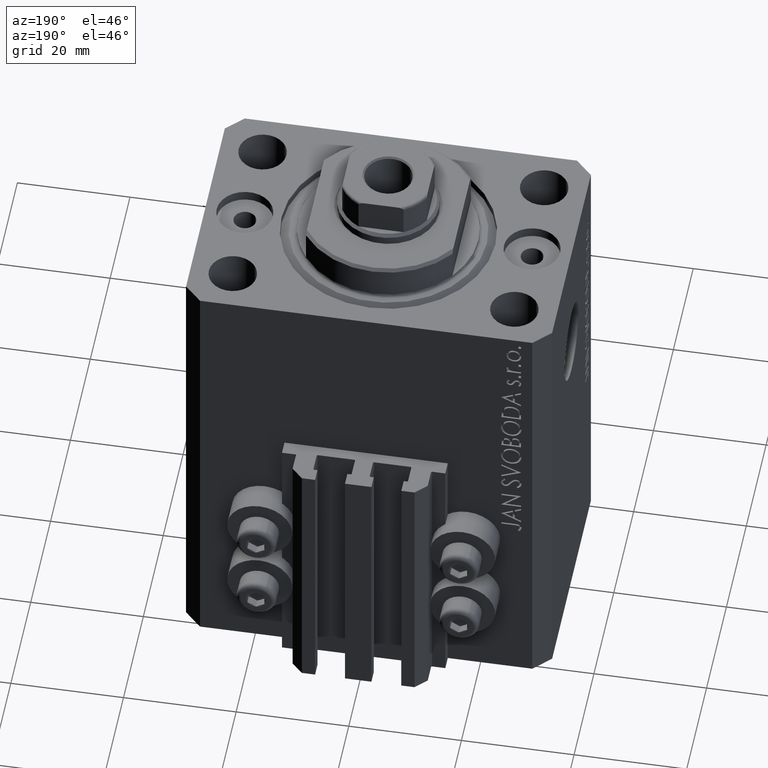
[diagram: clean part render]
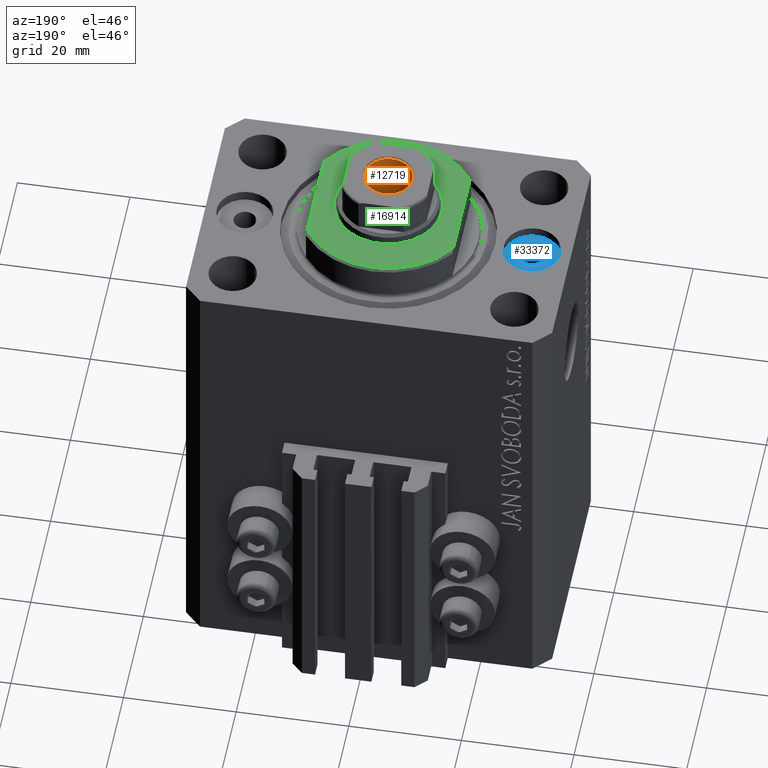
[diagram: same view with three faces highlighted in distinct colors, each labeled with its STEP entity id]
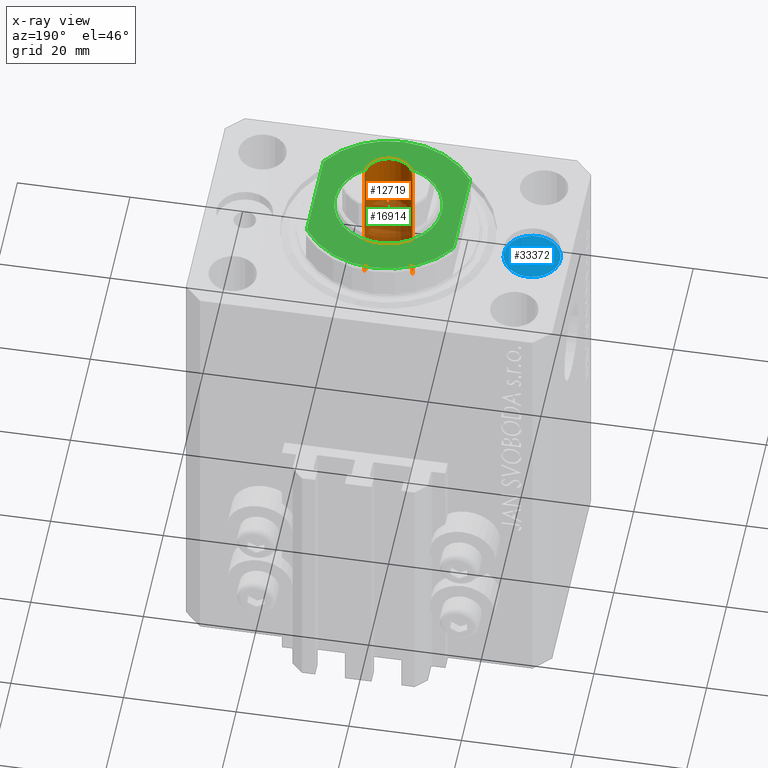
[diagram: x-ray of the same camera — body ghosted, the three highlighted faces saturated]
A machine part, auxiliary view with three faces highlighted in distinct colors.
The next image is the same camera in x-ray (body ghosted, the three faces saturated) — at least one of them is partly hidden behind the body in this view.
Their STEP definitions:

[orange] entity #12719 — the highlighted cylindrical surface (edge-blend (fillet) strip) has radius 4.25 mm, axis along (0, 0, 1).
#29 = EDGE_CURVE ( 'NONE', #27291, #1811, #26779, .T. ) ;
#200 = CARTESIAN_POINT ( 'NONE',  ( 4.249999999999996447, 0.000000000000000000, 88.79999999999999716 ) ) ;
#1714 = ORIENTED_EDGE ( 'NONE', *, *, #38770, .T. ) ;
#1811 = VERTEX_POINT ( 'NONE', #41011 ) ;
#2341 = ORIENTED_EDGE ( 'NONE', *, *, #9839, .F. ) ;
#2531 = CARTESIAN_POINT ( 'NONE',  ( 4.249999999999994671, 0.000000000000000000, 64.10000000000002274 ) ) ;
#3401 = AXIS2_PLACEMENT_3D ( 'NONE', #7083, #18296, #28316 ) ;
#5079 = AXIS2_PLACEMENT_3D ( 'NONE', #25809, #22003, #46596 ) ;
#5413 = VECTOR ( 'NONE', #23459, 1000.000000000000000 ) ;
#5696 = CIRCLE ( 'NONE', #45306, 4.249999999999996447 ) ;
#5751 = CARTESIAN_POINT ( 'NONE',  ( -4.249999999999994671, 5.204748896376244783E-16, 64.10000000000002274 ) ) ;
#7083 = CARTESIAN_POINT ( 'NONE',  ( 0.000000000000000000, 0.000000000000000000, 89.10000000000000853 ) ) ;
#7947 = EDGE_LOOP ( 'NONE', ( #31603, #18850, #1714, #2341 ) ) ;
#7962 = VECTOR ( 'NONE', #19331, 1000.000000000000000 ) ;
#9839 = EDGE_CURVE ( 'NONE', #10547, #12390, #37940, .T. ) ;
#10187 = CYLINDRICAL_SURFACE ( 'NONE', #3401, 4.249999999999996447 ) ;
#10466 = CARTESIAN_POINT ( 'NONE',  ( 0.000000000000000000, 0.000000000000000000, 88.79999999999999716 ) ) ;
#10547 = VERTEX_POINT ( 'NONE', #2531 ) ;
#12390 = VERTEX_POINT ( 'NONE', #200 ) ;
#12719 = ADVANCED_FACE ( 'NONE', ( #13778 ), #10187, .F. ) ;
#13778 = FACE_OUTER_BOUND ( 'NONE', #7947, .T. ) ;
#17607 = EDGE_CURVE ( 'NONE', #27291, #10547, #30945, .T. ) ;
#18296 = DIRECTION ( 'NONE',  ( -0.000000000000000000, -0.000000000000000000, 1.000000000000000000 ) ) ;
#18850 = ORIENTED_EDGE ( 'NONE', *, *, #29, .T. ) ;
#19331 = DIRECTION ( 'NONE',  ( -0.000000000000000000, -0.000000000000000000, 1.000000000000000000 ) ) ;
#22003 = DIRECTION ( 'NONE',  ( -0.000000000000000000, -0.000000000000000000, 1.000000000000000000 ) ) ;
#22744 = CARTESIAN_POINT ( 'NONE',  ( -4.249999999999996447, 5.204748896376247741E-16, 89.10000000000000853 ) ) ;
#23459 = DIRECTION ( 'NONE',  ( -0.000000000000000000, -0.000000000000000000, 1.000000000000000000 ) ) ;
#25809 = CARTESIAN_POINT ( 'NONE',  ( 0.000000000000000000, 0.000000000000000000, 64.10000000000002274 ) ) ;
#26779 = LINE ( 'NONE', #22744, #5413 ) ;
#27291 = VERTEX_POINT ( 'NONE', #5751 ) ;
#28316 = DIRECTION ( 'NONE',  ( 1.000000000000000000, 0.000000000000000000, 0.000000000000000000 ) ) ;
#30945 = CIRCLE ( 'NONE', #5079, 4.249999999999994671 ) ;
#31603 = ORIENTED_EDGE ( 'NONE', *, *, #17607, .F. ) ;
#35501 = DIRECTION ( 'NONE',  ( 0.000000000000000000, 0.000000000000000000, 1.000000000000000000 ) ) ;
#37446 = CARTESIAN_POINT ( 'NONE',  ( 4.249999999999996447, 0.000000000000000000, 89.10000000000000853 ) ) ;
#37940 = LINE ( 'NONE', #37446, #7962 ) ;
#38770 = EDGE_CURVE ( 'NONE', #1811, #12390, #5696, .T. ) ;
#39075 = DIRECTION ( 'NONE',  ( 1.000000000000000000, 0.000000000000000000, 0.000000000000000000 ) ) ;
#41011 = CARTESIAN_POINT ( 'NONE',  ( -4.249999999999996447, 5.204748896376247741E-16, 88.79999999999999716 ) ) ;
#45306 = AXIS2_PLACEMENT_3D ( 'NONE', #10466, #35501, #39075 ) ;
#46596 = DIRECTION ( 'NONE',  ( 1.000000000000000000, 0.000000000000000000, 0.000000000000000000 ) ) ;

[blue] entity #33372 — the highlighted planar face has unit normal (0, 0, 1).
#475 = CIRCLE ( 'NONE', #45416, 5.000000000003342215 ) ;
#1683 = CARTESIAN_POINT ( 'NONE',  ( -25.50000000000000000, 0.000000000000000000, -1.899999999999999911 ) ) ;
#4782 = AXIS2_PLACEMENT_3D ( 'NONE', #35223, #42146, #13051 ) ;
#5661 = PLANE ( 'NONE',  #4782 ) ;
#13051 = DIRECTION ( 'NONE',  ( 1.000000000000000000, 0.000000000000000000, -0.000000000000000000 ) ) ;
#13998 = EDGE_LOOP ( 'NONE', ( #45008, #27312 ) ) ;
#14011 = CARTESIAN_POINT ( 'NONE',  ( -25.50000000000000000, 0.000000000000000000, -1.899999999999999911 ) ) ;
#14438 = ORIENTED_EDGE ( 'NONE', *, *, #42586, .T. ) ;
#15514 = DIRECTION ( 'NONE',  ( 0.000000000000000000, 0.000000000000000000, 1.000000000000000000 ) ) ;
#16234 = CIRCLE ( 'NONE', #20044, 5.000000000003342215 ) ;
#16245 = DIRECTION ( 'NONE',  ( 1.000000000000000000, 0.000000000000000000, 0.000000000000000000 ) ) ;
#18574 = CIRCLE ( 'NONE', #23132, 2.000000000003339551 ) ;
#19815 = CARTESIAN_POINT ( 'NONE',  ( -30.50000000000333955, 6.123233995740857512E-16, -1.899999999999999911 ) ) ;
#20044 = AXIS2_PLACEMENT_3D ( 'NONE', #14011, #43107, #39287 ) ;
#20690 = FACE_BOUND ( 'NONE', #13998, .T. ) ;
#23022 = CARTESIAN_POINT ( 'NONE',  ( -25.50000000000000000, 0.000000000000000000, -1.899999999999999911 ) ) ;
#23132 = AXIS2_PLACEMENT_3D ( 'NONE', #23022, #27530, #41634 ) ;
#25170 = CARTESIAN_POINT ( 'NONE',  ( -27.50000000000333600, 2.449293598298799123E-16, -1.899999999999999911 ) ) ;
#25997 = VERTEX_POINT ( 'NONE', #25170 ) ;
#26469 = VERTEX_POINT ( 'NONE', #45835 ) ;
#27312 = ORIENTED_EDGE ( 'NONE', *, *, #36437, .F. ) ;
#27530 = DIRECTION ( 'NONE',  ( 0.000000000000000000, 0.000000000000000000, 1.000000000000000000 ) ) ;
#29542 = CARTESIAN_POINT ( 'NONE',  ( -20.49999999999665690, 0.000000000000000000, -1.899999999999999911 ) ) ;
#30582 = VERTEX_POINT ( 'NONE', #19815 ) ;
#32114 = FACE_OUTER_BOUND ( 'NONE', #40085, .T. ) ;
#32934 = EDGE_CURVE ( 'NONE', #26469, #25997, #35212, .T. ) ;
#33372 = ADVANCED_FACE ( 'NONE', ( #20690, #32114 ), #5661, .T. ) ;
#33649 = DIRECTION ( 'NONE',  ( 0.000000000000000000, 0.000000000000000000, 1.000000000000000000 ) ) ;
#34351 = EDGE_CURVE ( 'NONE', #30582, #44676, #16234, .T. ) ;
#35212 = CIRCLE ( 'NONE', #40566, 2.000000000003339551 ) ;
#35223 = CARTESIAN_POINT ( 'NONE',  ( -25.50000000000000000, 0.000000000000000000, -1.899999999999999911 ) ) ;
#36437 = EDGE_CURVE ( 'NONE', #25997, #26469, #18574, .T. ) ;
#39287 = DIRECTION ( 'NONE',  ( 1.000000000000000000, 0.000000000000000000, 0.000000000000000000 ) ) ;
#40085 = EDGE_LOOP ( 'NONE', ( #14438, #41512 ) ) ;
#40566 = AXIS2_PLACEMENT_3D ( 'NONE', #44864, #15514, #41511 ) ;
#41511 = DIRECTION ( 'NONE',  ( 1.000000000000000000, 0.000000000000000000, 0.000000000000000000 ) ) ;
#41512 = ORIENTED_EDGE ( 'NONE', *, *, #34351, .T. ) ;
#41634 = DIRECTION ( 'NONE',  ( 1.000000000000000000, 0.000000000000000000, 0.000000000000000000 ) ) ;
#42146 = DIRECTION ( 'NONE',  ( 0.000000000000000000, 0.000000000000000000, 1.000000000000000000 ) ) ;
#42586 = EDGE_CURVE ( 'NONE', #44676, #30582, #475, .T. ) ;
#43107 = DIRECTION ( 'NONE',  ( 0.000000000000000000, 0.000000000000000000, 1.000000000000000000 ) ) ;
#44676 = VERTEX_POINT ( 'NONE', #29542 ) ;
#44864 = CARTESIAN_POINT ( 'NONE',  ( -25.50000000000000000, 0.000000000000000000, -1.899999999999999911 ) ) ;
#45008 = ORIENTED_EDGE ( 'NONE', *, *, #32934, .F. ) ;
#45416 = AXIS2_PLACEMENT_3D ( 'NONE', #1683, #33649, #16245 ) ;
#45835 = CARTESIAN_POINT ( 'NONE',  ( -23.49999999999666045, 0.000000000000000000, -1.899999999999999911 ) ) ;

[green] entity #16914 — the highlighted planar face has unit normal (0, 0, 1).
#1033 = EDGE_CURVE ( 'NONE', #44211, #14577, #35914, .T. ) ;
#1506 = CARTESIAN_POINT ( 'NONE',  ( -9.500000000000015987, 0.000000000000000000, -6.500000000000000000 ) ) ;
#1670 = DIRECTION ( 'NONE',  ( -1.000000000000000000, 0.000000000000000000, 0.000000000000000000 ) ) ;
#3976 = DIRECTION ( 'NONE',  ( 0.000000000000000000, 0.000000000000000000, -1.000000000000000000 ) ) ;
#4541 = DIRECTION ( 'NONE',  ( -0.000000000000000000, -0.000000000000000000, 1.000000000000000000 ) ) ;
#5203 = ORIENTED_EDGE ( 'NONE', *, *, #7954, .T. ) ;
#5254 = CARTESIAN_POINT ( 'NONE',  ( -13.00000000000000000, -43.08131845707602992, -6.500000000000000000 ) ) ;
#5558 = EDGE_CURVE ( 'NONE', #18312, #29109, #27678, .T. ) ;
#7561 = FACE_BOUND ( 'NONE', #21980, .T. ) ;
#7954 = EDGE_CURVE ( 'NONE', #25832, #47138, #20104, .T. ) ;
#8691 = CARTESIAN_POINT ( 'NONE',  ( 0.000000000000000000, 0.000000000000000000, -6.500000000000000000 ) ) ;
#8759 = EDGE_CURVE ( 'NONE', #25832, #29109, #37928, .T. ) ;
#9792 = EDGE_CURVE ( 'NONE', #14577, #44211, #28529, .T. ) ;
#11132 = CARTESIAN_POINT ( 'NONE',  ( 13.00000000000000000, 8.440971508067139695, -6.500000000000000000 ) ) ;
#12635 = CARTESIAN_POINT ( 'NONE',  ( -13.00000000000000000, -8.440971508067139695, -6.500000000000000000 ) ) ;
#12660 = CARTESIAN_POINT ( 'NONE',  ( 0.000000000000000000, 0.000000000000000000, -6.500000000000000000 ) ) ;
#13497 = CARTESIAN_POINT ( 'NONE',  ( 0.000000000000000000, 0.000000000000000000, -6.500000000000000000 ) ) ;
#14577 = VERTEX_POINT ( 'NONE', #1506 ) ;
#16914 = ADVANCED_FACE ( 'NONE', ( #7561, #47177 ), #22107, .T. ) ;
#17442 = CARTESIAN_POINT ( 'NONE',  ( -13.00000000000000000, 8.440971508067139695, -6.500000000000000000 ) ) ;
#18036 = LINE ( 'NONE', #47131, #46435 ) ;
#18144 = EDGE_CURVE ( 'NONE', #47138, #18312, #18036, .T. ) ;
#18312 = VERTEX_POINT ( 'NONE', #37535 ) ;
#18538 = DIRECTION ( 'NONE',  ( -1.000000000000000000, 0.000000000000000000, -0.000000000000000000 ) ) ;
#18659 = DIRECTION ( 'NONE',  ( -1.000000000000000000, 0.000000000000000000, 0.000000000000000000 ) ) ;
#18915 = ORIENTED_EDGE ( 'NONE', *, *, #5558, .T. ) ;
#19369 = VECTOR ( 'NONE', #19797, 1000.000000000000000 ) ;
#19797 = DIRECTION ( 'NONE',  ( -0.000000000000000000, -1.000000000000000000, -0.000000000000000000 ) ) ;
#20104 = CIRCLE ( 'NONE', #39161, 15.50000000000003730 ) ;
#20826 = AXIS2_PLACEMENT_3D ( 'NONE', #27818, #31871, #42608 ) ;
#21980 = EDGE_LOOP ( 'NONE', ( #35559, #23450 ) ) ;
#22107 = PLANE ( 'NONE',  #37819 ) ;
#22458 = DIRECTION ( 'NONE',  ( -0.000000000000000000, -0.000000000000000000, 1.000000000000000000 ) ) ;
#23450 = ORIENTED_EDGE ( 'NONE', *, *, #1033, .T. ) ;
#25455 = CARTESIAN_POINT ( 'NONE',  ( 0.000000000000000000, 0.000000000000000000, -6.500000000000000000 ) ) ;
#25507 = AXIS2_PLACEMENT_3D ( 'NONE', #12660, #4541, #1670 ) ;
#25832 = VERTEX_POINT ( 'NONE', #17442 ) ;
#25985 = ORIENTED_EDGE ( 'NONE', *, *, #8759, .F. ) ;
#26010 = AXIS2_PLACEMENT_3D ( 'NONE', #13497, #22458, #18659 ) ;
#26048 = ORIENTED_EDGE ( 'NONE', *, *, #18144, .T. ) ;
#27678 = CIRCLE ( 'NONE', #20826, 15.50000000000003730 ) ;
#27818 = CARTESIAN_POINT ( 'NONE',  ( 0.000000000000000000, 0.000000000000000000, -6.500000000000000000 ) ) ;
#28028 = CARTESIAN_POINT ( 'NONE',  ( 9.500000000000015987, 1.163414459189987457E-15, -6.500000000000000000 ) ) ;
#28529 = CIRCLE ( 'NONE', #25507, 9.500000000000015987 ) ;
#28824 = EDGE_LOOP ( 'NONE', ( #5203, #26048, #18915, #25985 ) ) ;
#29109 = VERTEX_POINT ( 'NONE', #12635 ) ;
#29669 = DIRECTION ( 'NONE',  ( 0.000000000000000000, -1.000000000000000000, -0.000000000000000000 ) ) ;
#31871 = DIRECTION ( 'NONE',  ( 0.000000000000000000, 0.000000000000000000, -1.000000000000000000 ) ) ;
#34687 = DIRECTION ( 'NONE',  ( 0.000000000000000000, 0.000000000000000000, -1.000000000000000000 ) ) ;
#35559 = ORIENTED_EDGE ( 'NONE', *, *, #9792, .T. ) ;
#35914 = CIRCLE ( 'NONE', #26010, 9.500000000000015987 ) ;
#37535 = CARTESIAN_POINT ( 'NONE',  ( 13.00000000000000000, -8.440971508067139695, -6.500000000000000000 ) ) ;
#37795 = DIRECTION ( 'NONE',  ( -1.000000000000000000, 0.000000000000000000, 0.000000000000000000 ) ) ;
#37819 = AXIS2_PLACEMENT_3D ( 'NONE', #25455, #3976, #18538 ) ;
#37928 = LINE ( 'NONE', #5254, #19369 ) ;
#39161 = AXIS2_PLACEMENT_3D ( 'NONE', #8691, #34687, #37795 ) ;
#42608 = DIRECTION ( 'NONE',  ( -1.000000000000000000, 0.000000000000000000, 0.000000000000000000 ) ) ;
#44211 = VERTEX_POINT ( 'NONE', #28028 ) ;
#46435 = VECTOR ( 'NONE', #29669, 1000.000000000000000 ) ;
#47131 = CARTESIAN_POINT ( 'NONE',  ( 13.00000000000000000, -43.08131845707602992, -6.500000000000000000 ) ) ;
#47138 = VERTEX_POINT ( 'NONE', #11132 ) ;
#47177 = FACE_OUTER_BOUND ( 'NONE', #28824, .T. ) ;